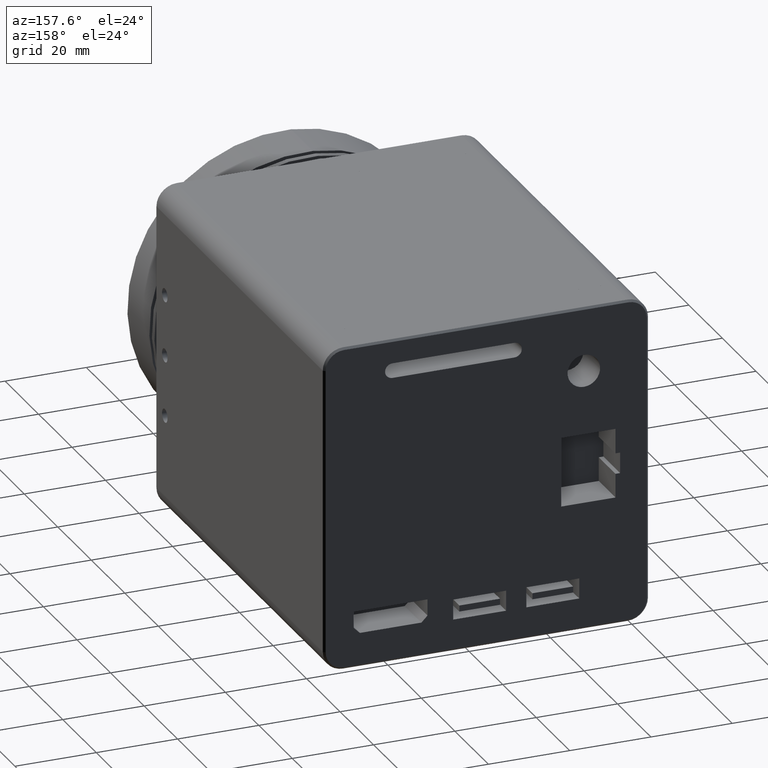
[diagram: clean part render]
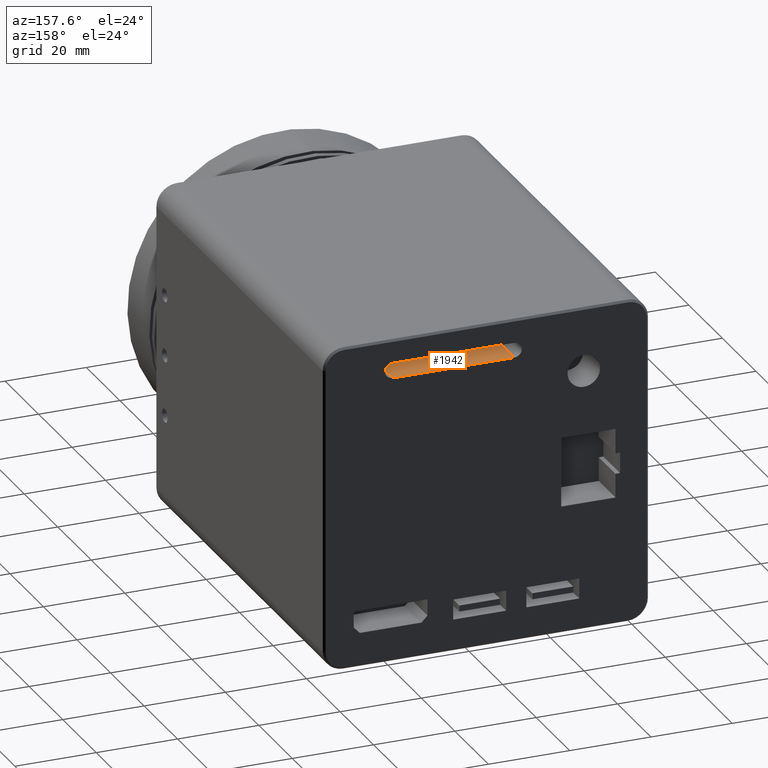
[diagram: same view with one face highlighted and labeled with its STEP entity id]
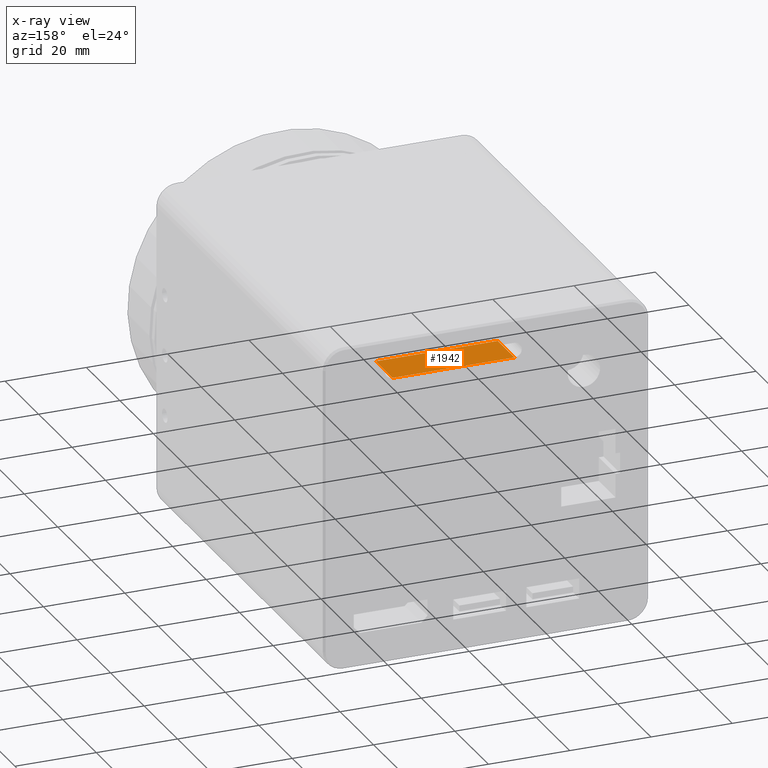
[diagram: x-ray of the same camera — body ghosted, the highlighted face saturated]
A machine part, auxiliary view. The second image highlights one B-rep face of the part: STEP entity #1942.
The next image is the same camera in x-ray: the body ghosted, the highlighted face saturated — about 0% of this face is hidden behind the body in this view.
In plain terms, the highlighted planar face has unit normal (0, 0, -1).
Its self-contained STEP definition (entity closure, byte-faithful):
#100 = DIRECTION ( 'NONE',  ( -0.000000000000000000, 1.000000000000000000, -0.000000000000000000 ) ) ;
#250 = EDGE_CURVE ( 'NONE', #1598, #2708, #1387, .T. ) ;
#478 = CARTESIAN_POINT ( 'NONE',  ( 10.35434728517189207, 63.60462753950338310, 30.53370575113038043 ) ) ;
#573 = DIRECTION ( 'NONE',  ( 0.000000000000000000, 0.000000000000000000, -1.000000000000000000 ) ) ;
#648 = LINE ( 'NONE', #2767, #1698 ) ;
#943 = EDGE_LOOP ( 'NONE', ( #2428, #1783, #1541, #2796 ) ) ;
#960 = VECTOR ( 'NONE', #2954, 1000.000000000000000 ) ;
#1157 = CARTESIAN_POINT ( 'NONE',  ( 40.35434728517189029, 63.60462753950338310, 30.53370575113038043 ) ) ;
#1174 = EDGE_CURVE ( 'NONE', #1391, #1598, #648, .T. ) ;
#1270 = CARTESIAN_POINT ( 'NONE',  ( 40.35434728517189029, 53.60462753950339021, 30.53370575113038043 ) ) ;
#1294 = DIRECTION ( 'NONE',  ( -1.000000000000000000, 0.000000000000000000, -0.000000000000000000 ) ) ;
#1319 = CARTESIAN_POINT ( 'NONE',  ( 10.35434728517189207, 53.60462753950339021, 30.53370575113038043 ) ) ;
#1331 = CARTESIAN_POINT ( 'NONE',  ( 10.35434728517189207, 63.60462753950338310, 30.53370575113038043 ) ) ;
#1387 = LINE ( 'NONE', #1331, #960 ) ;
#1391 = VERTEX_POINT ( 'NONE', #1270 ) ;
#1541 = ORIENTED_EDGE ( 'NONE', *, *, #3405, .F. ) ;
#1564 = CARTESIAN_POINT ( 'NONE',  ( 10.35434728517189207, 53.60462753950339021, 30.53370575113038043 ) ) ;
#1598 = VERTEX_POINT ( 'NONE', #1157 ) ;
#1630 = LINE ( 'NONE', #1319, #1666 ) ;
#1666 = VECTOR ( 'NONE', #2369, 1000.000000000000000 ) ;
#1689 = CARTESIAN_POINT ( 'NONE',  ( 10.35434728517189207, 53.60462753950339021, 30.53370575113038043 ) ) ;
#1698 = VECTOR ( 'NONE', #100, 1000.000000000000000 ) ;
#1720 = DIRECTION ( 'NONE',  ( -0.000000000000000000, 1.000000000000000000, -0.000000000000000000 ) ) ;
#1758 = VECTOR ( 'NONE', #1720, 1000.000000000000000 ) ;
#1783 = ORIENTED_EDGE ( 'NONE', *, *, #2485, .F. ) ;
#1942 = ADVANCED_FACE ( 'NONE', ( #3199 ), #3149, .F. ) ;
#1994 = LINE ( 'NONE', #1689, #1758 ) ;
#2304 = AXIS2_PLACEMENT_3D ( 'NONE', #1564, #573, #1294 ) ;
#2369 = DIRECTION ( 'NONE',  ( -1.000000000000000000, -0.000000000000000000, -0.000000000000000000 ) ) ;
#2428 = ORIENTED_EDGE ( 'NONE', *, *, #250, .T. ) ;
#2485 = EDGE_CURVE ( 'NONE', #2778, #2708, #1994, .T. ) ;
#2683 = CARTESIAN_POINT ( 'NONE',  ( 10.35434728517189207, 53.60462753950339021, 30.53370575113038043 ) ) ;
#2708 = VERTEX_POINT ( 'NONE', #478 ) ;
#2767 = CARTESIAN_POINT ( 'NONE',  ( 40.35434728517189029, 53.60462753950339021, 30.53370575113038043 ) ) ;
#2778 = VERTEX_POINT ( 'NONE', #2683 ) ;
#2796 = ORIENTED_EDGE ( 'NONE', *, *, #1174, .T. ) ;
#2954 = DIRECTION ( 'NONE',  ( -1.000000000000000000, -0.000000000000000000, -0.000000000000000000 ) ) ;
#3149 = PLANE ( 'NONE',  #2304 ) ;
#3199 = FACE_OUTER_BOUND ( 'NONE', #943, .T. ) ;
#3405 = EDGE_CURVE ( 'NONE', #1391, #2778, #1630, .T. ) ;